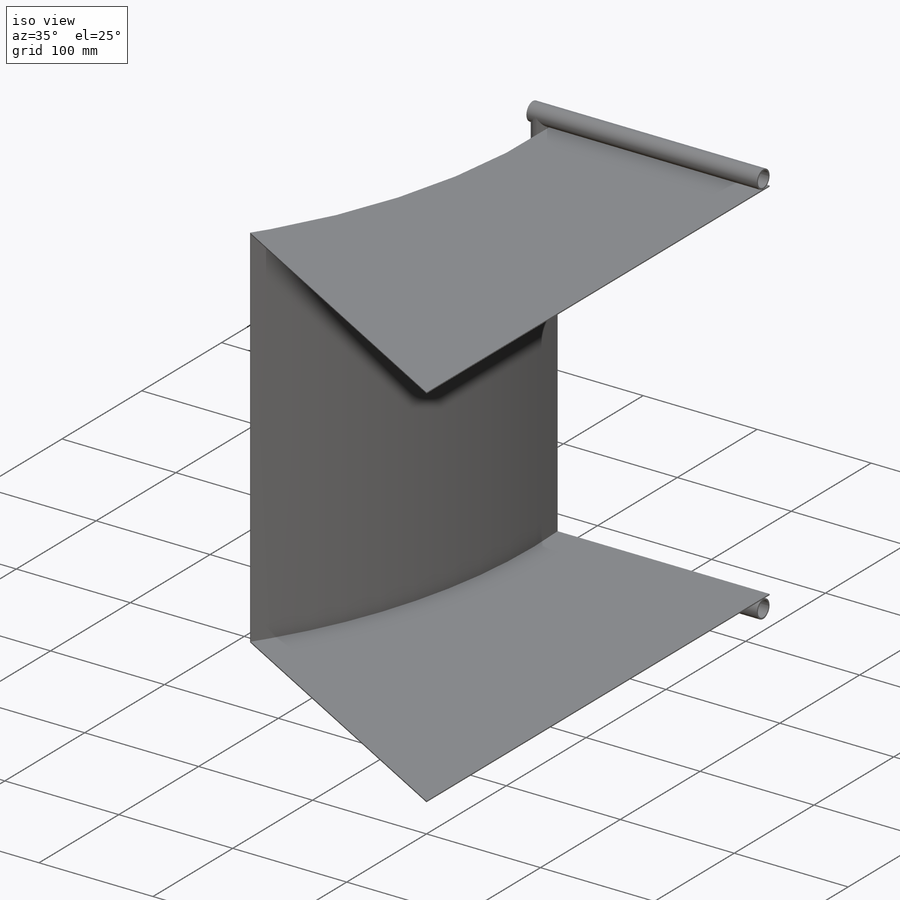
[diagram: iso view]
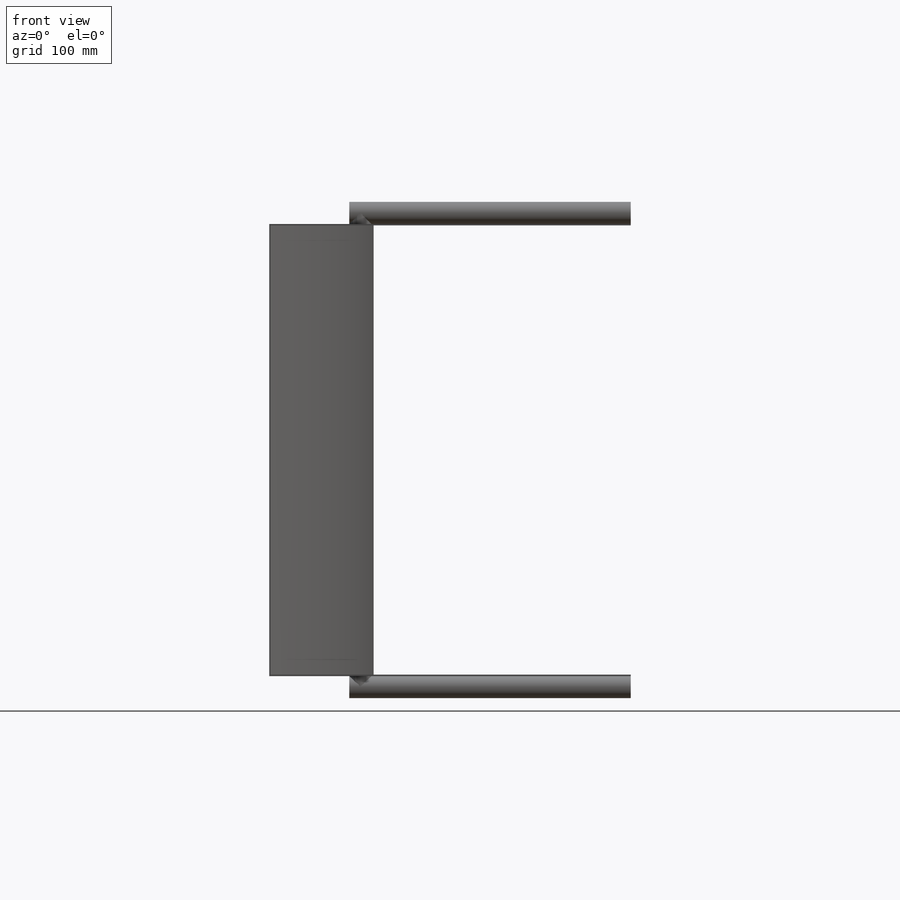
[diagram: front view]
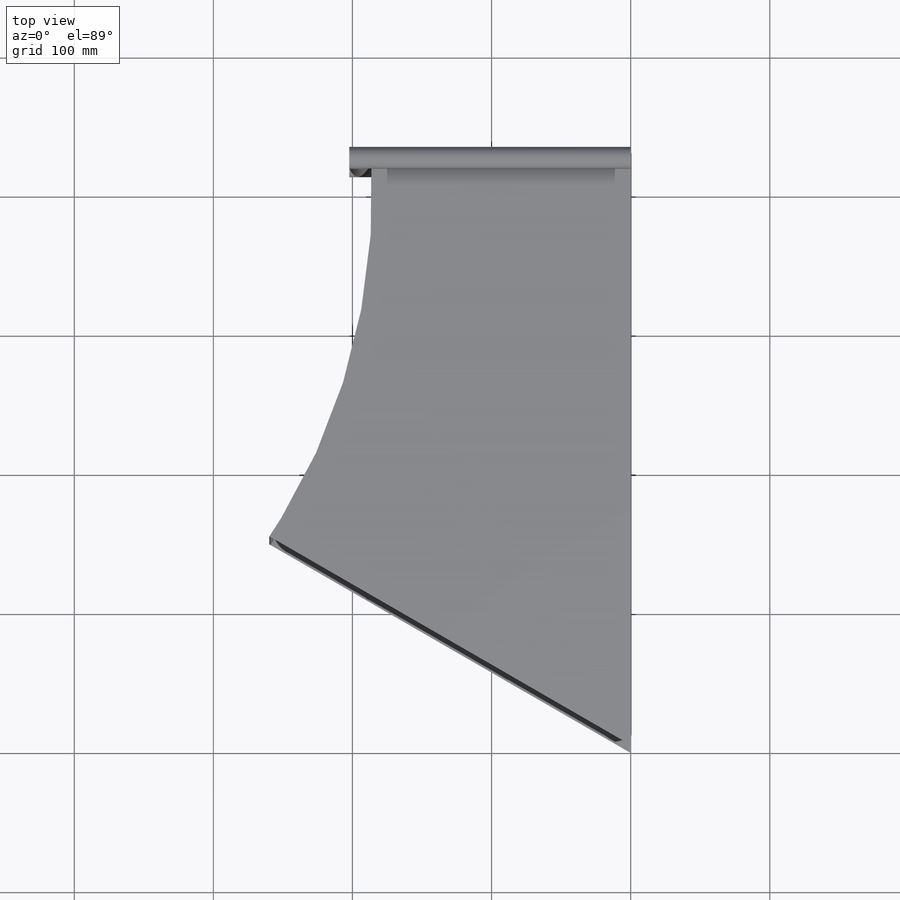
[diagram: top view]
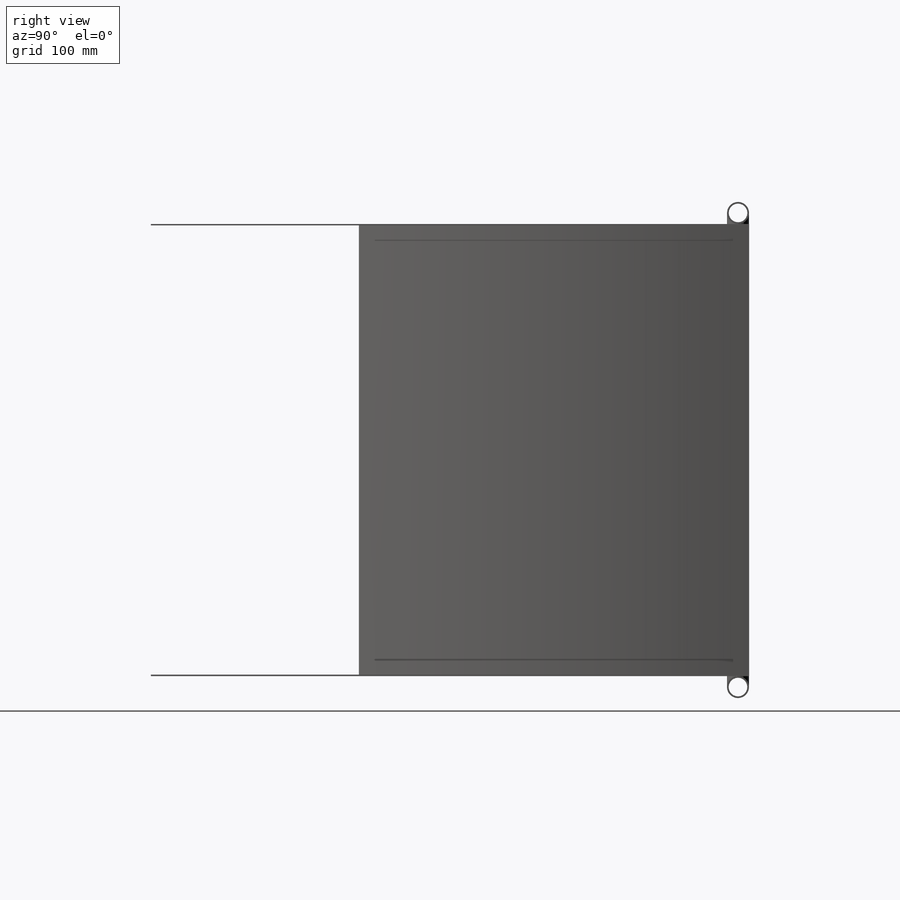
[diagram: right view]
SOLIDWORKS PART (.sldprt)
format: sldprt  version: not decoded by parser v0  size: 229,376 bytes
history: native  units: mm
features: sketch x6, extrude x4, plane x2, cut_extrude x2, material x1, shell x1 (+11 scaffold rows collapsed)
feature tree (27):
  scaffold x11  (default folders/planes/origin — collapsed)
  material  "6061-T6 (SS)"
  sketch  "Sketch1"  dims[c1.D1=~359.566844mm c2.D1=30.0deg c2.D2=300.0mm]
  extrude  "Boss-Extrude1"  Depth=325mm
  shell  "Shell1"  Thickness=1.016mm
  plane  "Plane1"
  sketch  "Sketch2"  dims[D1=15.875mm]
  extrude  "Boss-Extrude2"  Depth=202.3mm
  sketch  "Sketch3"  dims[D1=1.2446mm]
  cut_extrude  "Cut-Extrude1"  [1 undecoded]
  plane  "Plane2"
  sketch  "Sketch4"  dims[D1=1.2446mm]
  extrude  "Boss-Extrude3"  Depth=340.875mm
  sketch  "Sketch6"  dims[D1=1.2446mm]
  extrude  "Boss-Extrude9"  Depth=0.0001mm
  sketch  "Sketch7"
  cut_extrude  "Cut-Extrude2"  [1 undecoded]
decode coverage: 10 of 13 modeling features carry decoded parameters
note: ~ marks probable driven/reference dimensions
note: 2 parameter values undecoded
note: suppression state not decoded; provenance and decode notes live in map.json
